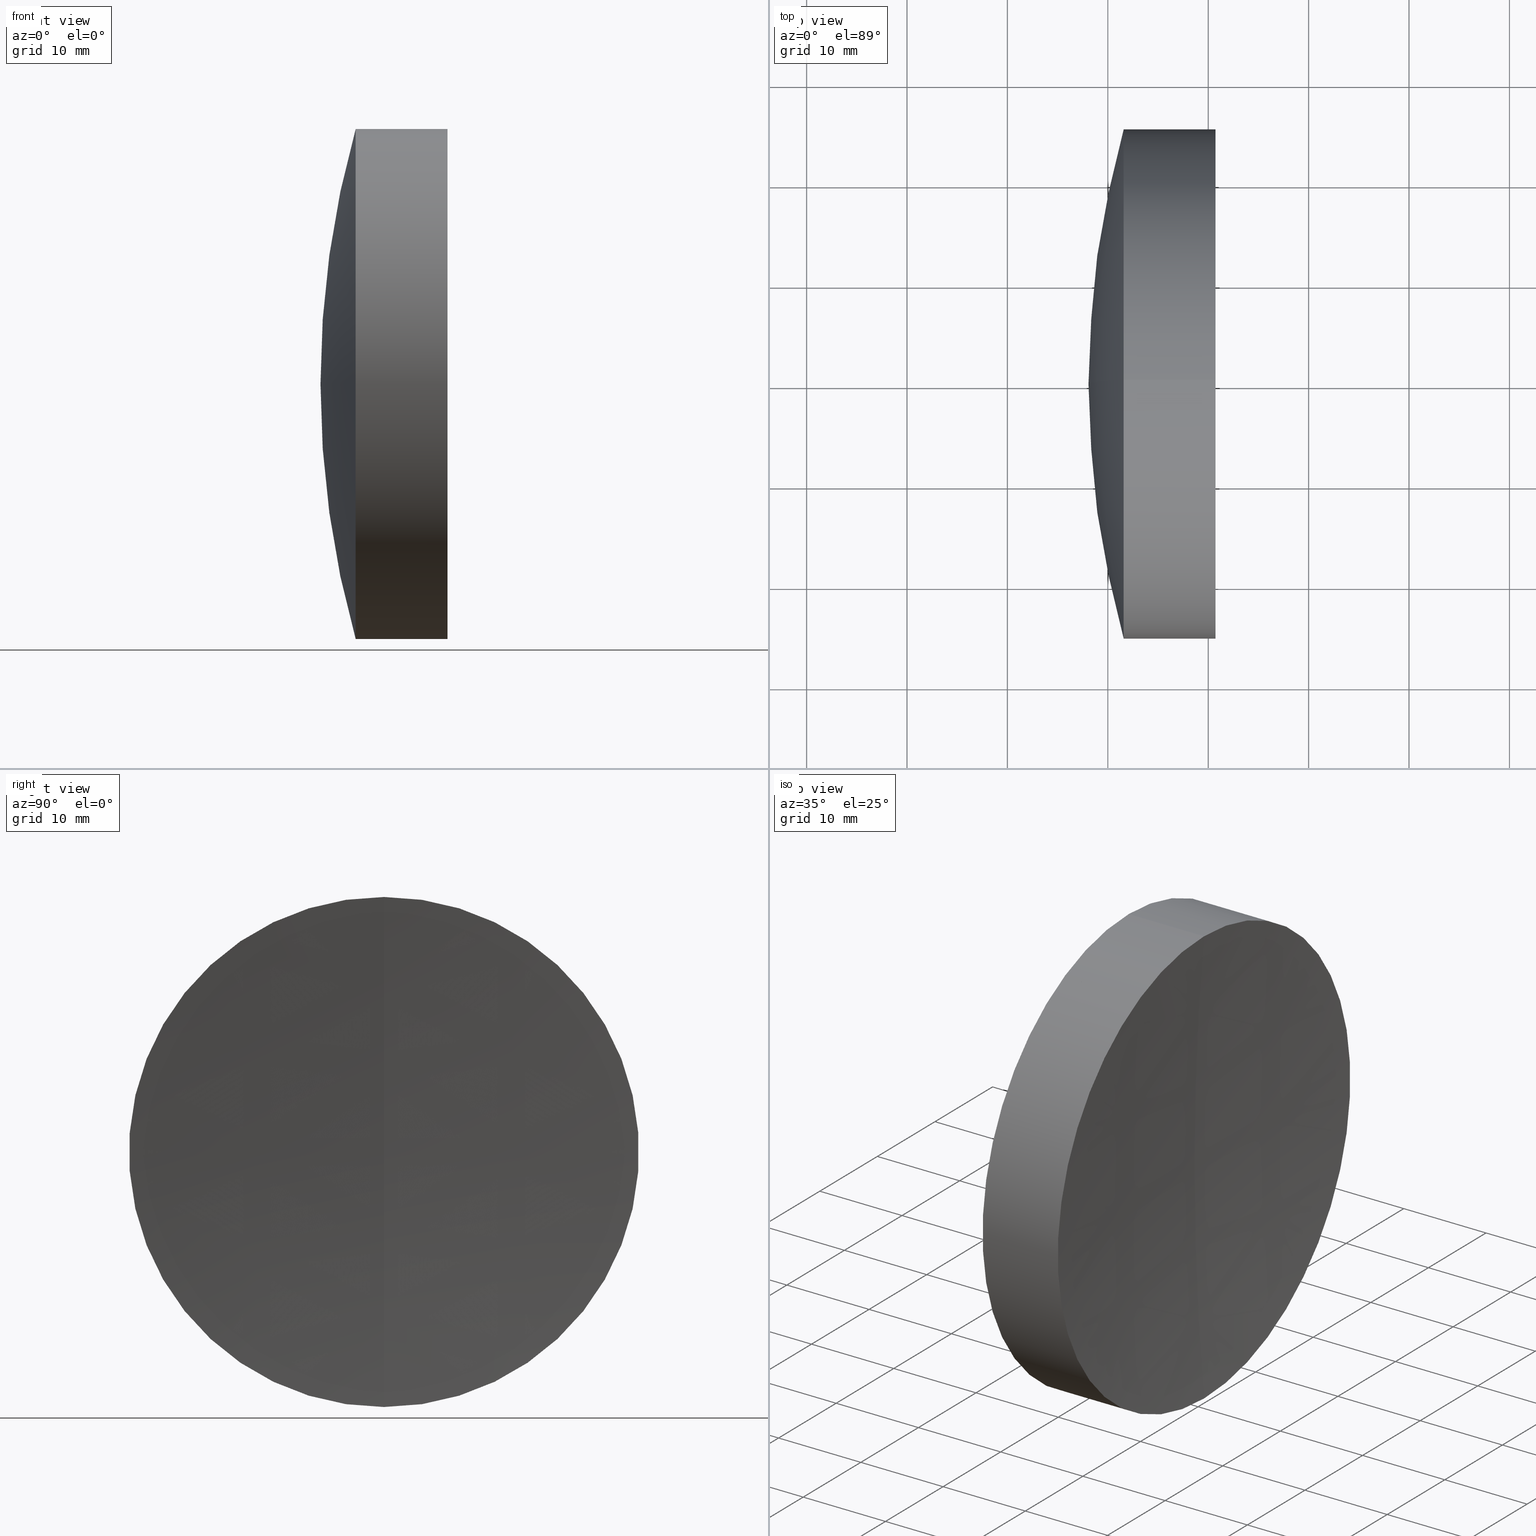
[diagram: canonical four-view strip — front | top / right | iso, engineering-drawing reading convention]
A machine part, canonical four-view strip (front | top / right | iso — engineering-drawing reading convention). The complete STEP part file that produces these views, byte-faithful:
ISO-10303-21;
HEADER;
FILE_DESCRIPTION (( 'STEP AP214' ),
    '1' );
FILE_NAME ('145182.STEP',
    '2019-06-13T02:02:30',
    ( 'user' ),
    ( '΢���й�' ),
    'SwSTEP 2.0',
    'SolidWorks 2016',
    '' );
FILE_SCHEMA (( 'AUTOMOTIVE_DESIGN' ));
ENDSEC;

DATA;
#1 = CLOSED_SHELL ( 'NONE', ( #27, #172, #257, #59, #23, #55 ) ) ;
#2 = CARTESIAN_POINT ( 'NONE',  ( -0.5519199926577972300, 0.0000000000000000000, 0.0000000000000000000 ) ) ;
#3 = DIRECTION ( 'NONE',  ( -1.000000000000000000, -0.0000000000000000000, -0.0000000000000000000 ) ) ;
#4 = CARTESIAN_POINT ( 'NONE',  ( 148.0747689612467800, 0.0000000000000000000, -6.928037612090617800E-014 ) ) ;
#5 = EDGE_CURVE ( 'NONE', #150, #49, #96, .T. ) ;
#6 = CARTESIAN_POINT ( 'NONE',  ( 44.36476896124682400, 0.0000000000000000000, 3.080629158308288600E-014 ) ) ;
#7 = ORIENTED_EDGE ( 'NONE', *, *, #305, .F. ) ;
#8 = CIRCLE ( 'NONE', #58, 93.76000000000001900 ) ;
#9 = AXIS2_PLACEMENT_3D ( 'NONE', #243, #24, #107 ) ;
#10 = CIRCLE ( 'NONE', #205, 93.76000000000001900 ) ;
#11 = DIRECTION ( 'NONE',  ( 0.0000000000000000000, 0.0000000000000000000, 1.000000000000000000 ) ) ;
#12 = DIRECTION ( 'NONE',  ( 0.0000000000000000000, 0.0000000000000000000, 1.000000000000000000 ) ) ;
#13 = ORIENTED_EDGE ( 'NONE', *, *, #305, .T. ) ;
#14 = DIRECTION ( 'NONE',  ( 0.0000000000000000000, 1.000000000000000000, -0.0000000000000000000 ) ) ;
#15 = DIRECTION ( 'NONE',  ( -0.0000000000000000000, -1.000000000000000000, -0.0000000000000000000 ) ) ;
#16 = DIRECTION ( 'NONE',  ( 0.0000000000000000000, 1.000000000000000000, 0.0000000000000000000 ) ) ;
#17 = AXIS2_PLACEMENT_3D ( 'NONE', #247, #230, #282 ) ;
#18 = ORIENTED_EDGE ( 'NONE', *, *, #53, .F. ) ;
#19 = SPHERICAL_SURFACE ( 'NONE', #311, 112.2099999999999900 ) ;
#20 = DIRECTION ( 'NONE',  ( 0.0000000000000000000, 0.0000000000000000000, 1.000000000000000000 ) ) ;
#21 = ADVANCED_FACE ( 'NONE', ( #36 ), #306, .T. ) ;
#22 = APPLICATION_PROTOCOL_DEFINITION ( 'draft international standard', 'automotive_design', 1998, #337 ) ;
#23 = ADVANCED_FACE ( 'NONE', ( #25 ), #130, .F. ) ;
#24 = DIRECTION ( 'NONE',  ( -1.000000000000000000, -0.0000000000000000000, -0.0000000000000000000 ) ) ;
#25 = FACE_OUTER_BOUND ( 'NONE', #86, .T. ) ;
#26 = APPLICATION_CONTEXT ( 'automotive_design' ) ;
#27 = ADVANCED_FACE ( 'NONE', ( #300 ), #182, .T. ) ;
#28 = AXIS2_PLACEMENT_3D ( 'NONE', #196, #117, #81 ) ;
#29 = CARTESIAN_POINT ( 'NONE',  ( 440.1247689612468400, 0.0000000000000000000, 0.0000000000000000000 ) ) ;
#30 = DIRECTION ( 'NONE',  ( 0.0000000000000000000, 0.0000000000000000000, -1.000000000000000000 ) ) ;
#31 = ORIENTED_EDGE ( 'NONE', *, *, #248, .T. ) ;
#32 = PRODUCT_DEFINITION_SHAPE ( 'NONE', 'NONE',  #160 ) ;
#33 = SHAPE_DEFINITION_REPRESENTATION ( #32, #193 ) ;
#34 = AXIS2_PLACEMENT_3D ( 'NONE', #146, #325, #345 ) ;
#35 = DIRECTION ( 'NONE',  ( 0.0000000000000000000, 0.0000000000000000000, -1.000000000000000000 ) ) ;
#36 = FACE_OUTER_BOUND ( 'NONE', #85, .T. ) ;
#37 = CARTESIAN_POINT ( 'NONE',  ( 44.36476896124682400, 0.0000000000000000000, 3.080629158308288600E-014 ) ) ;
#38 = DIRECTION ( 'NONE',  ( -1.000000000000000000, -0.0000000000000000000, -0.0000000000000000000 ) ) ;
#39 = LINE ( 'NONE', #195, #194 ) ;
#40 = DIRECTION ( 'NONE',  ( 0.0000000000000000000, -1.224646799147353500E-016, 1.000000000000000000 ) ) ;
#41 = CIRCLE ( 'NONE', #201, 25.39999999999997000 ) ;
#42 = DIRECTION ( 'NONE',  ( 0.0000000000000000000, 0.0000000000000000000, 1.000000000000000000 ) ) ;
#43 = ORIENTED_EDGE ( 'NONE', *, *, #5, .F. ) ;
#44 = VERTEX_POINT ( 'NONE', #223 ) ;
#45 = DIRECTION ( 'NONE',  ( -1.000000000000000000, -0.0000000000000000000, -0.0000000000000000000 ) ) ;
#46 = EDGE_CURVE ( 'NONE', #44, #228, #269, .T. ) ;
#47 = CARTESIAN_POINT ( 'NONE',  ( 0.0000000000000000000, 0.0000000000000000000, 0.0000000000000000000 ) ) ;
#48 = DIRECTION ( 'NONE',  ( 0.0000000000000000000, 0.0000000000000000000, -1.000000000000000000 ) ) ;
#49 = VERTEX_POINT ( 'NONE', #152 ) ;
#50 = CARTESIAN_POINT ( 'NONE',  ( 241.8347689612468200, 0.0000000000000000000, -7.502152031530896200E-014 ) ) ;
#51 = DIRECTION ( 'NONE',  ( -1.000000000000000000, -0.0000000000000000000, -0.0000000000000000000 ) ) ;
#52 = LINE ( 'NONE', #299, #119 ) ;
#53 = EDGE_CURVE ( 'NONE', #150, #105, #245, .T. ) ;
#54 = SURFACE_STYLE_FILL_AREA ( #91 ) ;
#55 = ADVANCED_FACE ( 'NONE', ( #233 ), #111, .T. ) ;
#56 = EDGE_LOOP ( 'NONE', ( #209, #13, #241, #221 ) ) ;
#57 = DIRECTION ( 'NONE',  ( 0.0000000000000000000, 0.0000000000000000000, 1.000000000000000000 ) ) ;
#58 = AXIS2_PLACEMENT_3D ( 'NONE', #328, #327, #259 ) ;
#59 = ADVANCED_FACE ( 'NONE', ( #214 ), #187, .F. ) ;
#60 = ADVANCED_FACE ( 'NONE', ( #103 ), #19, .T. ) ;
#61 = ORIENTED_EDGE ( 'NONE', *, *, #217, .F. ) ;
#62 = CIRCLE ( 'NONE', #153, 25.39999999999991700 ) ;
#63 = EDGE_CURVE ( 'NONE', #136, #90, #332, .T. ) ;
#64 = ORIENTED_EDGE ( 'NONE', *, *, #304, .F. ) ;
#65 = UNCERTAINTY_MEASURE_WITH_UNIT (LENGTH_MEASURE( 1.000000000000000100E-005 ), #68, 'distance_accuracy_value', 'NONE');
#66 = ORIENTED_EDGE ( 'NONE', *, *, #188, .T. ) ;
#67 = CARTESIAN_POINT ( 'NONE',  ( -0.5519199926577972300, 0.0000000000000000000, 0.0000000000000000000 ) ) ;
#68 =( LENGTH_UNIT ( ) NAMED_UNIT ( * ) SI_UNIT ( .MILLI., .METRE. ) );
#69 = CARTESIAN_POINT ( 'NONE',  ( 153.6621801840200900, 3.110602869834273700E-015, -25.39999999999997000 ) ) ;
#70 = SPHERICAL_SURFACE ( 'NONE', #34, 112.2099999999999800 ) ;
#71 = ORIENTED_EDGE ( 'NONE', *, *, #53, .T. ) ;
#72 = FILL_AREA_STYLE ('',( #341 ) ) ;
#73 = CIRCLE ( 'NONE', #113, 280.5500000000000100 ) ;
#74 = CARTESIAN_POINT ( 'NONE',  ( 440.1247689612468400, 0.0000000000000000000, 0.0000000000000000000 ) ) ;
#75 = AXIS2_PLACEMENT_3D ( 'NONE', #135, #159, #317 ) ;
#76 = ORIENTED_EDGE ( 'NONE', *, *, #216, .F. ) ;
#77 = UNCERTAINTY_MEASURE_WITH_UNIT (LENGTH_MEASURE( 1.000000000000000100E-005 ), #129, 'distance_accuracy_value', 'NONE');
#78 = CARTESIAN_POINT ( 'NONE',  ( 241.8347689612468200, 0.0000000000000000000, -7.502152031530896200E-014 ) ) ;
#79 = CARTESIAN_POINT ( 'NONE',  ( 153.6621801840200600, 0.0000000000000000000, -25.39999999999994200 ) ) ;
#80 = DIRECTION ( 'NONE',  ( 0.0000000000000000000, 1.000000000000000000, 0.0000000000000000000 ) ) ;
#81 = DIRECTION ( 'NONE',  ( 0.0000000000000000000, 0.0000000000000000000, 1.000000000000000000 ) ) ;
#82 = DIRECTION ( 'NONE',  ( -1.000000000000000000, -0.0000000000000000000, -0.0000000000000000000 ) ) ;
#83 = AXIS2_PLACEMENT_3D ( 'NONE', #264, #179, #35 ) ;
#84 = DIRECTION ( 'NONE',  ( -1.000000000000000000, -0.0000000000000000000, -0.0000000000000000000 ) ) ;
#85 = EDGE_LOOP ( 'NONE', ( #252, #31, #76 ) ) ;
#86 = EDGE_LOOP ( 'NONE', ( #64, #43, #71 ) ) ;
#87 = EDGE_CURVE ( 'NONE', #97, #44, #229, .T. ) ;
#88 = DIRECTION ( 'NONE',  ( 0.0000000000000000000, 1.000000000000000000, 0.0000000000000000000 ) ) ;
#89 = SPHERICAL_SURFACE ( 'NONE', #197, 280.5500000000000100 ) ;
#90 = VERTEX_POINT ( 'NONE', #79 ) ;
#91 = FILL_AREA_STYLE ('',( #186 ) ) ;
#92 =( GEOMETRIC_REPRESENTATION_CONTEXT ( 3 ) GLOBAL_UNCERTAINTY_ASSIGNED_CONTEXT ( ( #98 ) ) GLOBAL_UNIT_ASSIGNED_CONTEXT ( ( #168, #318, #148 ) ) REPRESENTATION_CONTEXT ( 'NONE', 'WORKASPACE' ) );
#93 = CARTESIAN_POINT ( 'NONE',  ( -0.8160621761658039000, 0.0000000000000000000, 0.0000000000000000000 ) ) ;
#94 = DIRECTION ( 'NONE',  ( -0.0000000000000000000, -1.000000000000000000, -0.0000000000000000000 ) ) ;
#95 = CARTESIAN_POINT ( 'NONE',  ( -0.8160621761658039000, 0.0000000000000000000, 25.39999999999997000 ) ) ;
#96 = CIRCLE ( 'NONE', #17, 25.39999999999991700 ) ;
#97 = VERTEX_POINT ( 'NONE', #307 ) ;
#98 = UNCERTAINTY_MEASURE_WITH_UNIT (LENGTH_MEASURE( 1.000000000000000100E-005 ), #168, 'distance_accuracy_value', 'NONE');
#99 = DIRECTION ( 'NONE',  ( 0.0000000000000000000, 1.000000000000000000, 0.0000000000000000000 ) ) ;
#100 = EDGE_CURVE ( 'NONE', #228, #110, #8, .T. ) ;
#101 = DIRECTION ( 'NONE',  ( 0.0000000000000000000, 0.0000000000000000000, 1.000000000000000000 ) ) ;
#102 = DIRECTION ( 'NONE',  ( -1.000000000000000000, -0.0000000000000000000, -0.0000000000000000000 ) ) ;
#103 = FACE_OUTER_BOUND ( 'NONE', #342, .T. ) ;
#104 = CLOSED_SHELL ( 'NONE', ( #21, #151, #290, #174, #191, #60 ) ) ;
#105 = VERTEX_POINT ( 'NONE', #280 ) ;
#106 = CARTESIAN_POINT ( 'NONE',  ( 156.5747689612468000, 0.0000000000000000000, 2.393541071646666600E-014 ) ) ;
#107 = DIRECTION ( 'NONE',  ( 0.0000000000000000000, 0.0000000000000000000, 1.000000000000000000 ) ) ;
#108 =( GEOMETRIC_REPRESENTATION_CONTEXT ( 3 ) GLOBAL_UNCERTAINTY_ASSIGNED_CONTEXT ( ( #77 ) ) GLOBAL_UNIT_ASSIGNED_CONTEXT ( ( #129, #253, #338 ) ) REPRESENTATION_CONTEXT ( 'NONE', 'WORKASPACE' ) );
#109 = CARTESIAN_POINT ( 'NONE',  ( -0.8160621761658039000, 0.0000000000000000000, 0.0000000000000000000 ) ) ;
#110 = VERTEX_POINT ( 'NONE', #4 ) ;
#111 = CYLINDRICAL_SURFACE ( 'NONE', #256, 25.39999999999991700 ) ;
#112 = EDGE_CURVE ( 'NONE', #240, #90, #227, .T. ) ;
#113 = AXIS2_PLACEMENT_3D ( 'NONE', #29, #173, #283 ) ;
#114 = DIRECTION ( 'NONE',  ( -1.000000000000000000, -0.0000000000000000000, -0.0000000000000000000 ) ) ;
#115 = CIRCLE ( 'NONE', #210, 25.39999999999997000 ) ;
#116 = SURFACE_STYLE_FILL_AREA ( #125 ) ;
#117 = DIRECTION ( 'NONE',  ( -1.000000000000000000, -0.0000000000000000000, -0.0000000000000000000 ) ) ;
#118 = CIRCLE ( 'NONE', #185, 25.39999999999991700 ) ;
#119 = VECTOR ( 'NONE', #180, 1000.000000000000000 ) ;
#120 = DIRECTION ( 'NONE',  ( 0.0000000000000000000, -1.000000000000000000, 0.0000000000000000000 ) ) ;
#121 = EDGE_LOOP ( 'NONE', ( #296, #165, #184 ) ) ;
#122 = CARTESIAN_POINT ( 'NONE',  ( 160.7269477456904700, 0.0000000000000000000, -25.39999999999988100 ) ) ;
#123 = AXIS2_PLACEMENT_3D ( 'NONE', #37, #16, #331 ) ;
#124 = ORIENTED_EDGE ( 'NONE', *, *, #217, .T. ) ;
#125 = FILL_AREA_STYLE ('',( #334 ) ) ;
#126 = CIRCLE ( 'NONE', #192, 112.2099999999999800 ) ;
#127 = ORIENTED_EDGE ( 'NONE', *, *, #176, .F. ) ;
#128 = AXIS2_PLACEMENT_3D ( 'NONE', #208, #14, #141 ) ;
#129 =( LENGTH_UNIT ( ) NAMED_UNIT ( * ) SI_UNIT ( .MILLI., .METRE. ) );
#130 = SPHERICAL_SURFACE ( 'NONE', #83, 280.5500000000000100 ) ;
#131 = STYLED_ITEM ( 'NONE', ( #347 ), #193 ) ;
#132 = FACE_OUTER_BOUND ( 'NONE', #319, .T. ) ;
#133 = MECHANICAL_DESIGN_GEOMETRIC_PRESENTATION_REPRESENTATION (  '', ( #131 ), #302 ) ;
#134 = ORIENTED_EDGE ( 'NONE', *, *, #340, .F. ) ;
#135 = CARTESIAN_POINT ( 'NONE',  ( 44.36476896124682400, 0.0000000000000000000, 3.080629158308288600E-014 ) ) ;
#136 = VERTEX_POINT ( 'NONE', #213 ) ;
#137 = DIRECTION ( 'NONE',  ( 0.0000000000000000000, 0.0000000000000000000, 1.000000000000000000 ) ) ;
#138 = MANIFOLD_SOLID_BREP ( '��ת2', #1 ) ;
#139 = VERTEX_POINT ( 'NONE', #69 ) ;
#140 = AXIS2_PLACEMENT_3D ( 'NONE', #322, #284, #137 ) ;
#141 = DIRECTION ( 'NONE',  ( 0.0000000000000000000, 0.0000000000000000000, 1.000000000000000000 ) ) ;
#142 = CARTESIAN_POINT ( 'NONE',  ( 44.36476896124682400, 0.0000000000000000000, 3.080629158308288600E-014 ) ) ;
#143 = PRODUCT_CONTEXT ( 'NONE', #337, 'mechanical' ) ;
#144 = ORIENTED_EDGE ( 'NONE', *, *, #286, .T. ) ;
#145 = ORIENTED_EDGE ( 'NONE', *, *, #286, .F. ) ;
#146 = CARTESIAN_POINT ( 'NONE',  ( 44.36476896124682400, 0.0000000000000000000, 3.080629158308288600E-014 ) ) ;
#147 =( GEOMETRIC_REPRESENTATION_CONTEXT ( 3 ) GLOBAL_UNCERTAINTY_ASSIGNED_CONTEXT ( ( #219 ) ) GLOBAL_UNIT_ASSIGNED_CONTEXT ( ( #189, #339, #211 ) ) REPRESENTATION_CONTEXT ( 'NONE', 'WORKASPACE' ) );
#148 =( NAMED_UNIT ( * ) SI_UNIT ( $, .STERADIAN. ) SOLID_ANGLE_UNIT ( ) );
#149 = MECHANICAL_DESIGN_GEOMETRIC_PRESENTATION_REPRESENTATION (  '', ( #166 ), #108 ) ;
#150 = VERTEX_POINT ( 'NONE', #122 ) ;
#151 = ADVANCED_FACE ( 'NONE', ( #132 ), #291, .T. ) ;
#152 = CARTESIAN_POINT ( 'NONE',  ( 160.7269477456904700, -3.110602869834261900E-015, 25.39999999999988100 ) ) ;
#153 = AXIS2_PLACEMENT_3D ( 'NONE', #287, #114, #12 ) ;
#154 = ORIENTED_EDGE ( 'NONE', *, *, #188, .F. ) ;
#155 = DIRECTION ( 'NONE',  ( 0.0000000000000000000, 0.0000000000000000000, 1.000000000000000000 ) ) ;
#156 = AXIS2_PLACEMENT_3D ( 'NONE', #109, #45, #244 ) ;
#157 = ORIENTED_EDGE ( 'NONE', *, *, #176, .T. ) ;
#158 = COLOUR_RGB ( '',1.000000000000000000, 1.000000000000000000, 1.000000000000000000 ) ;
#159 = DIRECTION ( 'NONE',  ( -0.0000000000000000000, 1.000000000000000000, 1.224646799147353200E-016 ) ) ;
#160 = PRODUCT_DEFINITION ( 'δ֪', '', #268, #315 ) ;
#161 = EDGE_LOOP ( 'NONE', ( #320, #171, #313 ) ) ;
#162 = ORIENTED_EDGE ( 'NONE', *, *, #63, .F. ) ;
#163 = AXIS2_PLACEMENT_3D ( 'NONE', #177, #80, #57 ) ;
#164 = PRESENTATION_STYLE_ASSIGNMENT (( #281 ) ) ;
#165 = ORIENTED_EDGE ( 'NONE', *, *, #226, .T. ) ;
#166 = STYLED_ITEM ( 'NONE', ( #267 ), #276 ) ;
#167 = FACE_OUTER_BOUND ( 'NONE', #324, .T. ) ;
#168 =( LENGTH_UNIT ( ) NAMED_UNIT ( * ) SI_UNIT ( .MILLI., .METRE. ) );
#169 = CARTESIAN_POINT ( 'NONE',  ( 44.36476896124682400, 0.0000000000000000000, 3.080629158308288600E-014 ) ) ;
#170 = ORIENTED_EDGE ( 'NONE', *, *, #329, .T. ) ;
#171 = ORIENTED_EDGE ( 'NONE', *, *, #340, .T. ) ;
#172 = ADVANCED_FACE ( 'NONE', ( #346 ), #89, .F. ) ;
#173 = DIRECTION ( 'NONE',  ( 0.0000000000000000000, -1.000000000000000000, -1.224646799147353200E-016 ) ) ;
#174 = ADVANCED_FACE ( 'NONE', ( #198 ), #285, .T. ) ;
#175 = CARTESIAN_POINT ( 'NONE',  ( 153.6621801840200600, 0.0000000000000000000, 0.0000000000000000000 ) ) ;
#176 = EDGE_CURVE ( 'NONE', #150, #90, #200, .T. ) ;
#177 = CARTESIAN_POINT ( 'NONE',  ( 241.8347689612468200, 0.0000000000000000000, -7.502152031530896200E-014 ) ) ;
#178 = CIRCLE ( 'NONE', #75, 112.2099999999999900 ) ;
#179 = DIRECTION ( 'NONE',  ( -0.0000000000000000000, -1.000000000000000000, -0.0000000000000000000 ) ) ;
#180 = DIRECTION ( 'NONE',  ( -1.000000000000000000, -0.0000000000000000000, -0.0000000000000000000 ) ) ;
#181 = PRESENTATION_LAYER_ASSIGNMENT (  '', '', ( #166 ) ) ;
#182 = CYLINDRICAL_SURFACE ( 'NONE', #231, 25.39999999999991700 ) ;
#183 = PRESENTATION_LAYER_ASSIGNMENT (  '', '', ( #131 ) ) ;
#184 = ORIENTED_EDGE ( 'NONE', *, *, #100, .T. ) ;
#185 = AXIS2_PLACEMENT_3D ( 'NONE', #175, #266, #42 ) ;
#186 = FILL_AREA_STYLE_COLOUR ( '', #158 ) ;
#187 = SPHERICAL_SURFACE ( 'NONE', #277, 112.2099999999999800 ) ;
#188 = EDGE_CURVE ( 'NONE', #90, #136, #118, .T. ) ;
#189 =( LENGTH_UNIT ( ) NAMED_UNIT ( * ) SI_UNIT ( .MILLI., .METRE. ) );
#190 = ORIENTED_EDGE ( 'NONE', *, *, #333, .T. ) ;
#191 = ADVANCED_FACE ( 'NONE', ( #207 ), #298, .T. ) ;
#192 = AXIS2_PLACEMENT_3D ( 'NONE', #275, #308, #288 ) ;
#193 = ADVANCED_BREP_SHAPE_REPRESENTATION ( '145182', ( #276, #138, #262 ), #92 ) ;
#194 = VECTOR ( 'NONE', #102, 1000.000000000000000 ) ;
#195 = CARTESIAN_POINT ( 'NONE',  ( -0.8160621761658039000, 3.110602869834273700E-015, -25.39999999999997000 ) ) ;
#196 = CARTESIAN_POINT ( 'NONE',  ( 153.6621801840200900, 0.0000000000000000000, 0.0000000000000000000 ) ) ;
#197 = AXIS2_PLACEMENT_3D ( 'NONE', #74, #15, #48 ) ;
#198 = FACE_OUTER_BOUND ( 'NONE', #121, .T. ) ;
#199 = EDGE_LOOP ( 'NONE', ( #297, #157, #162, #61 ) ) ;
#200 = LINE ( 'NONE', #309, #225 ) ;
#201 = AXIS2_PLACEMENT_3D ( 'NONE', #270, #38, #239 ) ;
#202 = SURFACE_STYLE_USAGE ( .BOTH. , #235 ) ;
#203 = ORIENTED_EDGE ( 'NONE', *, *, #5, .T. ) ;
#204 = VECTOR ( 'NONE', #314, 1000.000000000000000 ) ;
#205 = AXIS2_PLACEMENT_3D ( 'NONE', #78, #251, #40 ) ;
#206 = CARTESIAN_POINT ( 'NONE',  ( 153.6621801840200900, 0.0000000000000000000, 0.0000000000000000000 ) ) ;
#207 = FACE_OUTER_BOUND ( 'NONE', #56, .T. ) ;
#208 = CARTESIAN_POINT ( 'NONE',  ( 44.36476896124682400, 0.0000000000000000000, 3.080629158308288600E-014 ) ) ;
#209 = ORIENTED_EDGE ( 'NONE', *, *, #329, .F. ) ;
#210 = AXIS2_PLACEMENT_3D ( 'NONE', #261, #84, #224 ) ;
#211 =( NAMED_UNIT ( * ) SI_UNIT ( $, .STERADIAN. ) SOLID_ANGLE_UNIT ( ) );
#212 = DIRECTION ( 'NONE',  ( 1.000000000000000000, 0.0000000000000000000, 0.0000000000000000000 ) ) ;
#213 = CARTESIAN_POINT ( 'NONE',  ( 153.6621801840200600, -3.110602869834270200E-015, 25.39999999999997700 ) ) ;
#214 = FACE_OUTER_BOUND ( 'NONE', #234, .T. ) ;
#215 = SURFACE_STYLE_FILL_AREA ( #72 ) ;
#216 = EDGE_CURVE ( 'NONE', #44, #139, #255, .T. ) ;
#217 = EDGE_CURVE ( 'NONE', #49, #136, #52, .T. ) ;
#218 = CARTESIAN_POINT ( 'NONE',  ( 151.5808072753462700, 0.0000000000000000000, 25.39999999999994900 ) ) ;
#219 = UNCERTAINTY_MEASURE_WITH_UNIT (LENGTH_MEASURE( 1.000000000000000100E-005 ), #189, 'distance_accuracy_value', 'NONE');
#220 = ORIENTED_EDGE ( 'NONE', *, *, #216, .T. ) ;
#221 = ORIENTED_EDGE ( 'NONE', *, *, #226, .F. ) ;
#222 = EDGE_CURVE ( 'NONE', #49, #150, #62, .T. ) ;
#223 = CARTESIAN_POINT ( 'NONE',  ( 153.6621801840200900, 0.0000000000000000000, 25.39999999999997000 ) ) ;
#224 = DIRECTION ( 'NONE',  ( 0.0000000000000000000, 0.0000000000000000000, 1.000000000000000000 ) ) ;
#225 = VECTOR ( 'NONE', #279, 1000.000000000000000 ) ;
#226 = EDGE_CURVE ( 'NONE', #274, #228, #41, .T. ) ;
#227 = CIRCLE ( 'NONE', #128, 112.2099999999999800 ) ;
#228 = VERTEX_POINT ( 'NONE', #218 ) ;
#229 = CIRCLE ( 'NONE', #238, 112.2099999999999900 ) ;
#230 = DIRECTION ( 'NONE',  ( -1.000000000000000000, -0.0000000000000000000, -0.0000000000000000000 ) ) ;
#231 = AXIS2_PLACEMENT_3D ( 'NONE', #67, #237, #20 ) ;
#232 =( NAMED_UNIT ( * ) PLANE_ANGLE_UNIT ( ) SI_UNIT ( $, .RADIAN. ) );
#233 = FACE_OUTER_BOUND ( 'NONE', #292, .T. ) ;
#234 = EDGE_LOOP ( 'NONE', ( #134, #263, #66 ) ) ;
#235 = SURFACE_SIDE_STYLE ('',( #54 ) ) ;
#236 = SPHERICAL_SURFACE ( 'NONE', #163, 93.76000000000001900 ) ;
#237 = DIRECTION ( 'NONE',  ( -1.000000000000000000, -0.0000000000000000000, -0.0000000000000000000 ) ) ;
#238 = AXIS2_PLACEMENT_3D ( 'NONE', #169, #120, #30 ) ;
#239 = DIRECTION ( 'NONE',  ( 0.0000000000000000000, 0.0000000000000000000, 1.000000000000000000 ) ) ;
#240 = VERTEX_POINT ( 'NONE', #106 ) ;
#241 = ORIENTED_EDGE ( 'NONE', *, *, #46, .T. ) ;
#242 = FACE_OUTER_BOUND ( 'NONE', #161, .T. ) ;
#243 = CARTESIAN_POINT ( 'NONE',  ( 153.6621801840200600, 0.0000000000000000000, 0.0000000000000000000 ) ) ;
#244 = DIRECTION ( 'NONE',  ( 0.0000000000000000000, 0.0000000000000000000, 1.000000000000000000 ) ) ;
#245 = CIRCLE ( 'NONE', #140, 280.5500000000000100 ) ;
#246 = STYLED_ITEM ( 'NONE', ( #164 ), #138 ) ;
#247 = CARTESIAN_POINT ( 'NONE',  ( 160.7269477456904700, 0.0000000000000000000, 0.0000000000000000000 ) ) ;
#248 = EDGE_CURVE ( 'NONE', #97, #139, #178, .T. ) ;
#249 = DIRECTION ( 'NONE',  ( 0.0000000000000000000, 0.0000000000000000000, 1.000000000000000000 ) ) ;
#250 = CARTESIAN_POINT ( 'NONE',  ( 151.5808072753462700, 3.110602869834271300E-015, -25.40000000000002700 ) ) ;
#251 = DIRECTION ( 'NONE',  ( -0.0000000000000000000, 1.000000000000000000, 1.224646799147353200E-016 ) ) ;
#252 = ORIENTED_EDGE ( 'NONE', *, *, #87, .F. ) ;
#253 =( NAMED_UNIT ( * ) PLANE_ANGLE_UNIT ( ) SI_UNIT ( $, .RADIAN. ) );
#254 = COLOUR_RGB ( '',1.000000000000000000, 1.000000000000000000, 1.000000000000000000 ) ;
#255 = CIRCLE ( 'NONE', #28, 25.39999999999997000 ) ;
#256 = AXIS2_PLACEMENT_3D ( 'NONE', #2, #3, #11 ) ;
#257 = ADVANCED_FACE ( 'NONE', ( #242 ), #70, .F. ) ;
#258 = DIRECTION ( 'NONE',  ( 0.0000000000000000000, 0.0000000000000000000, 1.000000000000000000 ) ) ;
#259 = DIRECTION ( 'NONE',  ( 0.0000000000000000000, 0.0000000000000000000, -1.000000000000000000 ) ) ;
#260 = SURFACE_SIDE_STYLE ('',( #116 ) ) ;
#261 = CARTESIAN_POINT ( 'NONE',  ( 151.5808072753462500, 0.0000000000000000000, 0.0000000000000000000 ) ) ;
#262 = AXIS2_PLACEMENT_3D ( 'NONE', #47, #155, #212 ) ;
#263 = ORIENTED_EDGE ( 'NONE', *, *, #112, .T. ) ;
#264 = CARTESIAN_POINT ( 'NONE',  ( 440.1247689612468400, 0.0000000000000000000, 0.0000000000000000000 ) ) ;
#265 = ORIENTED_EDGE ( 'NONE', *, *, #46, .F. ) ;
#266 = DIRECTION ( 'NONE',  ( -1.000000000000000000, -0.0000000000000000000, -0.0000000000000000000 ) ) ;
#267 = PRESENTATION_STYLE_ASSIGNMENT (( #293 ) ) ;
#268 = PRODUCT_DEFINITION_FORMATION_WITH_SPECIFIED_SOURCE ( '�κ�', '', #278, .NOT_KNOWN. ) ;
#269 = LINE ( 'NONE', #95, #204 ) ;
#270 = CARTESIAN_POINT ( 'NONE',  ( 151.5808072753462500, 0.0000000000000000000, 0.0000000000000000000 ) ) ;
#271 = AXIS2_PLACEMENT_3D ( 'NONE', #206, #51, #249 ) ;
#272 = EDGE_LOOP ( 'NONE', ( #301, #330, #18 ) ) ;
#273 = PRODUCT_RELATED_PRODUCT_CATEGORY ( 'part', '', ( #278 ) ) ;
#274 = VERTEX_POINT ( 'NONE', #250 ) ;
#275 = CARTESIAN_POINT ( 'NONE',  ( 44.36476896124682400, 0.0000000000000000000, 3.080629158308288600E-014 ) ) ;
#276 = MANIFOLD_SOLID_BREP ( '��ת1', #104 ) ;
#277 = AXIS2_PLACEMENT_3D ( 'NONE', #6, #94, #289 ) ;
#278 = PRODUCT ( '145182', '145182', '', ( #143 ) ) ;
#279 = DIRECTION ( 'NONE',  ( -1.000000000000000000, -0.0000000000000000000, -0.0000000000000000000 ) ) ;
#280 = CARTESIAN_POINT ( 'NONE',  ( 159.5747689612468300, 0.0000000000000000000, -1.717873297503949800E-014 ) ) ;
#281 = SURFACE_STYLE_USAGE ( .BOTH. , #343 ) ;
#282 = DIRECTION ( 'NONE',  ( 0.0000000000000000000, 0.0000000000000000000, 1.000000000000000000 ) ) ;
#283 = DIRECTION ( 'NONE',  ( 0.0000000000000000000, 1.224646799147353200E-016, -1.000000000000000000 ) ) ;
#284 = DIRECTION ( 'NONE',  ( 0.0000000000000000000, 1.000000000000000000, -0.0000000000000000000 ) ) ;
#285 = SPHERICAL_SURFACE ( 'NONE', #326, 93.76000000000001900 ) ;
#286 = EDGE_CURVE ( 'NONE', #228, #274, #115, .T. ) ;
#287 = CARTESIAN_POINT ( 'NONE',  ( 160.7269477456904700, 0.0000000000000000000, 0.0000000000000000000 ) ) ;
#288 = DIRECTION ( 'NONE',  ( 0.0000000000000000000, 1.224646799147353200E-016, -1.000000000000000000 ) ) ;
#289 = DIRECTION ( 'NONE',  ( 0.0000000000000000000, 0.0000000000000000000, -1.000000000000000000 ) ) ;
#290 = ADVANCED_FACE ( 'NONE', ( #167 ), #236, .T. ) ;
#291 = CYLINDRICAL_SURFACE ( 'NONE', #156, 25.39999999999997000 ) ;
#292 = EDGE_LOOP ( 'NONE', ( #127, #203, #124, #154 ) ) ;
#293 = SURFACE_STYLE_USAGE ( .BOTH. , #260 ) ;
#294 = PRESENTATION_LAYER_ASSIGNMENT (  '', '', ( #246 ) ) ;
#295 = DIRECTION ( 'NONE',  ( 0.0000000000000000000, 0.0000000000000000000, 1.000000000000000000 ) ) ;
#296 = ORIENTED_EDGE ( 'NONE', *, *, #333, .F. ) ;
#297 = ORIENTED_EDGE ( 'NONE', *, *, #222, .T. ) ;
#298 = CYLINDRICAL_SURFACE ( 'NONE', #321, 25.39999999999997000 ) ;
#299 = CARTESIAN_POINT ( 'NONE',  ( -0.5519199926577972300, 0.0000000000000000000, 25.39999999999991700 ) ) ;
#300 = FACE_OUTER_BOUND ( 'NONE', #199, .T. ) ;
#301 = ORIENTED_EDGE ( 'NONE', *, *, #222, .F. ) ;
#302 =( GEOMETRIC_REPRESENTATION_CONTEXT ( 3 ) GLOBAL_UNCERTAINTY_ASSIGNED_CONTEXT ( ( #65 ) ) GLOBAL_UNIT_ASSIGNED_CONTEXT ( ( #68, #232, #310 ) ) REPRESENTATION_CONTEXT ( 'NONE', 'WORKASPACE' ) );
#303 = ORIENTED_EDGE ( 'NONE', *, *, #248, .F. ) ;
#304 = EDGE_CURVE ( 'NONE', #49, #105, #73, .T. ) ;
#305 = EDGE_CURVE ( 'NONE', #139, #44, #316, .T. ) ;
#306 = SPHERICAL_SURFACE ( 'NONE', #123, 112.2099999999999900 ) ;
#307 = CARTESIAN_POINT ( 'NONE',  ( 156.5747689612468000, 0.0000000000000000000, 3.767717244969910900E-014 ) ) ;
#308 = DIRECTION ( 'NONE',  ( 0.0000000000000000000, -1.000000000000000000, -1.224646799147353200E-016 ) ) ;
#309 = CARTESIAN_POINT ( 'NONE',  ( -0.5519199926577972300, 3.110602869834266600E-015, -25.39999999999991700 ) ) ;
#310 =( NAMED_UNIT ( * ) SI_UNIT ( $, .STERADIAN. ) SOLID_ANGLE_UNIT ( ) );
#311 = AXIS2_PLACEMENT_3D ( 'NONE', #142, #88, #295 ) ;
#312 = APPLICATION_PROTOCOL_DEFINITION ( 'draft international standard', 'automotive_design', 1998, #26 ) ;
#313 = ORIENTED_EDGE ( 'NONE', *, *, #63, .T. ) ;
#314 = DIRECTION ( 'NONE',  ( -1.000000000000000000, -0.0000000000000000000, -0.0000000000000000000 ) ) ;
#315 = PRODUCT_DEFINITION_CONTEXT ( 'detailed design', #26, 'design' ) ;
#316 = CIRCLE ( 'NONE', #271, 25.39999999999997000 ) ;
#317 = DIRECTION ( 'NONE',  ( 0.0000000000000000000, -1.224646799147353200E-016, 1.000000000000000000 ) ) ;
#318 =( NAMED_UNIT ( * ) PLANE_ANGLE_UNIT ( ) SI_UNIT ( $, .RADIAN. ) );
#319 = EDGE_LOOP ( 'NONE', ( #220, #170, #145, #265 ) ) ;
#320 = ORIENTED_EDGE ( 'NONE', *, *, #112, .F. ) ;
#321 = AXIS2_PLACEMENT_3D ( 'NONE', #93, #82, #258 ) ;
#322 = CARTESIAN_POINT ( 'NONE',  ( 440.1247689612468400, 0.0000000000000000000, 0.0000000000000000000 ) ) ;
#323 = ORIENTED_EDGE ( 'NONE', *, *, #87, .T. ) ;
#324 = EDGE_LOOP ( 'NONE', ( #144, #190, #335 ) ) ;
#325 = DIRECTION ( 'NONE',  ( -0.0000000000000000000, -1.000000000000000000, -0.0000000000000000000 ) ) ;
#326 = AXIS2_PLACEMENT_3D ( 'NONE', #50, #99, #101 ) ;
#327 = DIRECTION ( 'NONE',  ( 0.0000000000000000000, -1.000000000000000000, 0.0000000000000000000 ) ) ;
#328 = CARTESIAN_POINT ( 'NONE',  ( 241.8347689612468200, 0.0000000000000000000, -7.502152031530896200E-014 ) ) ;
#329 = EDGE_CURVE ( 'NONE', #139, #274, #39, .T. ) ;
#330 = ORIENTED_EDGE ( 'NONE', *, *, #304, .T. ) ;
#331 = DIRECTION ( 'NONE',  ( 0.0000000000000000000, 0.0000000000000000000, 1.000000000000000000 ) ) ;
#332 = CIRCLE ( 'NONE', #9, 25.39999999999991700 ) ;
#333 = EDGE_CURVE ( 'NONE', #274, #110, #10, .T. ) ;
#334 = FILL_AREA_STYLE_COLOUR ( '', #254 ) ;
#335 = ORIENTED_EDGE ( 'NONE', *, *, #100, .F. ) ;
#336 = COLOUR_RGB ( '',1.000000000000000000, 1.000000000000000000, 1.000000000000000000 ) ;
#337 = APPLICATION_CONTEXT ( 'automotive_design' ) ;
#338 =( NAMED_UNIT ( * ) SI_UNIT ( $, .STERADIAN. ) SOLID_ANGLE_UNIT ( ) );
#339 =( NAMED_UNIT ( * ) PLANE_ANGLE_UNIT ( ) SI_UNIT ( $, .RADIAN. ) );
#340 = EDGE_CURVE ( 'NONE', #240, #136, #126, .T. ) ;
#341 = FILL_AREA_STYLE_COLOUR ( '', #336 ) ;
#342 = EDGE_LOOP ( 'NONE', ( #303, #323, #7 ) ) ;
#343 = SURFACE_SIDE_STYLE ('',( #215 ) ) ;
#344 = MECHANICAL_DESIGN_GEOMETRIC_PRESENTATION_REPRESENTATION (  '', ( #246 ), #147 ) ;
#345 = DIRECTION ( 'NONE',  ( 0.0000000000000000000, 0.0000000000000000000, -1.000000000000000000 ) ) ;
#346 = FACE_OUTER_BOUND ( 'NONE', #272, .T. ) ;
#347 = PRESENTATION_STYLE_ASSIGNMENT (( #202 ) ) ;
ENDSEC;
END-ISO-10303-21;
